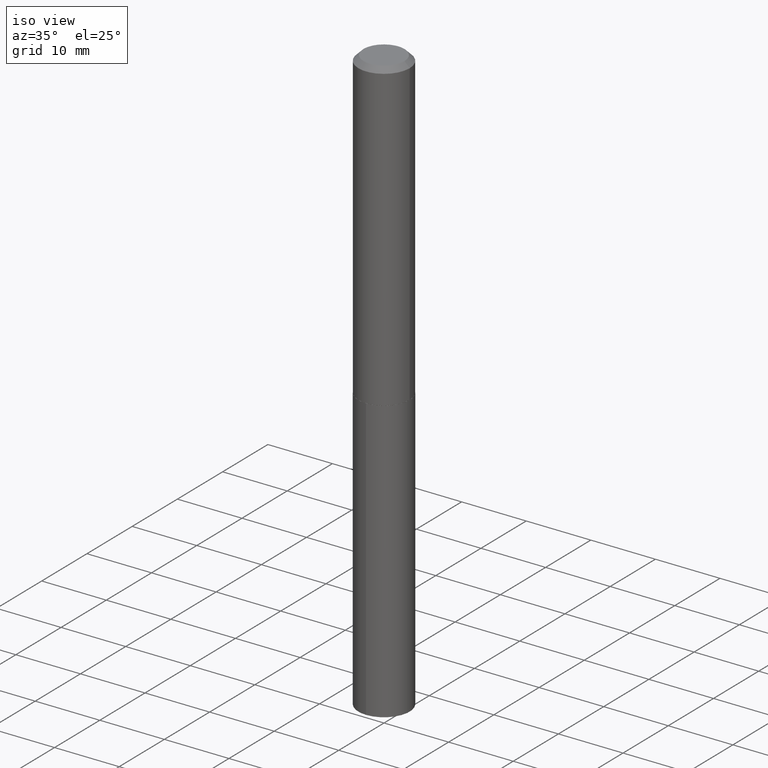
[diagram: clean part render]
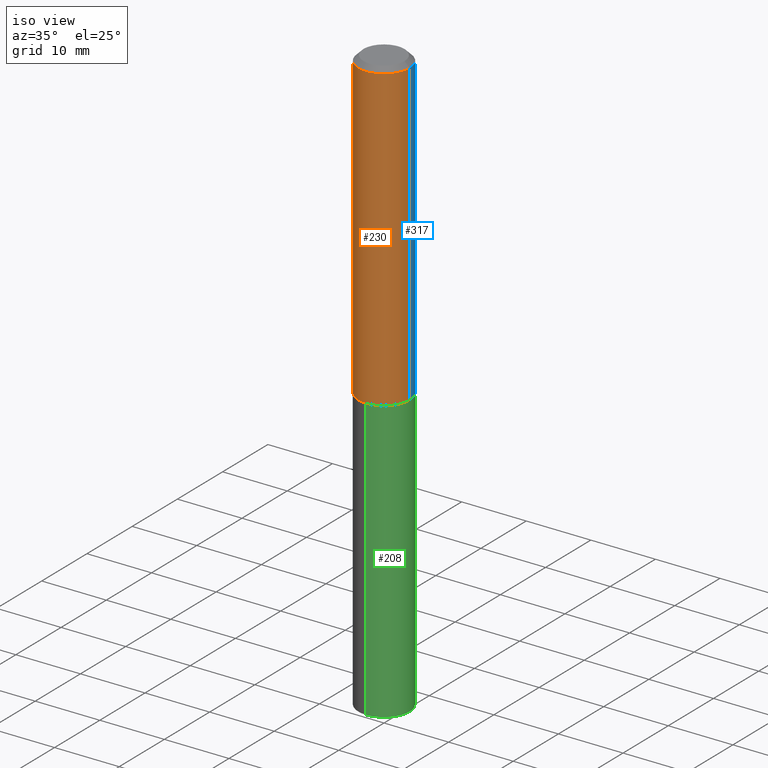
[diagram: same view with three faces highlighted in distinct colors, each labeled with its STEP entity id]
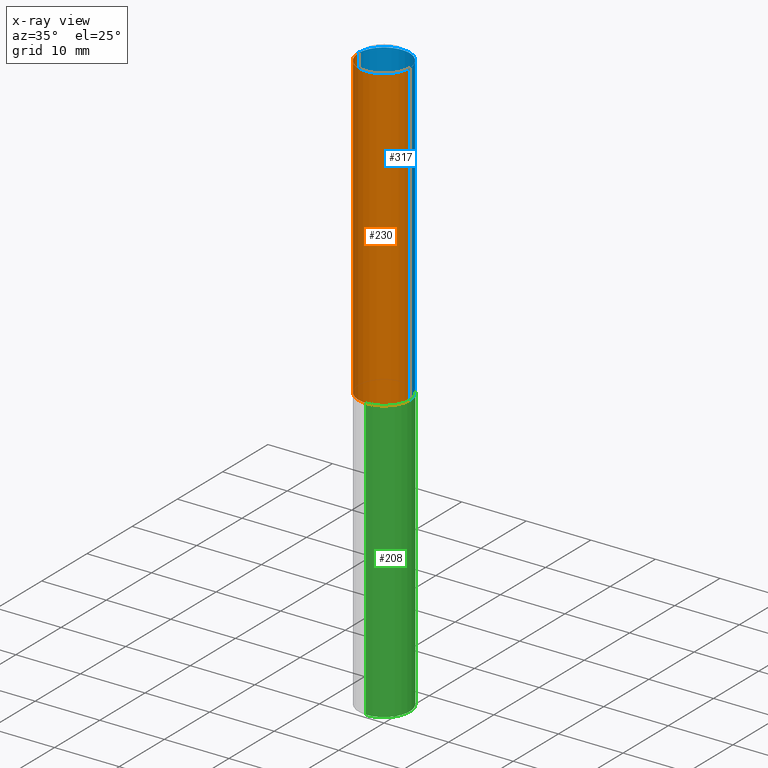
[diagram: x-ray of the same camera — body ghosted, the three highlighted faces saturated]
A machine part, iso view with three faces highlighted in distinct colors.
The next image is the same camera in x-ray (body ghosted, the three faces saturated) — at least one of them is partly hidden behind the body in this view.
Their STEP definitions:

[orange] entity #230 — the highlighted cylindrical surface (edge-blend (fillet) strip) has radius 3.9688 mm, axis along (-0, 0, 1).
#1 = FACE_OUTER_BOUND ( 'NONE', #309, .T. ) ;
#5 = DIRECTION ( 'NONE',  ( -2.445468806185136877E-29, 3.491481338843145188E-15, 1.000000000000000000 ) ) ;
#43 = EDGE_CURVE ( 'NONE', #221, #296, #367, .T. ) ;
#51 = LINE ( 'NONE', #178, #228 ) ;
#57 = CARTESIAN_POINT ( 'NONE',  ( -0.1562500000000000833, 1.110223024625157132E-15, -7.685836078523293962E-30 ) ) ;
#58 = EDGE_CURVE ( 'NONE', #361, #221, #332, .T. ) ;
#86 = AXIS2_PLACEMENT_3D ( 'NONE', #299, #253, #176 ) ;
#93 = DIRECTION ( 'NONE',  ( -2.445468806185136597E-29, 3.491481338843145583E-15, 1.000000000000000000 ) ) ;
#94 = ORIENTED_EDGE ( 'NONE', *, *, #217, .T. ) ;
#97 = CARTESIAN_POINT ( 'NONE',  ( -0.1562500000000001665, -5.380091636150366596E-15, -1.858900000000000219 ) ) ;
#130 = CARTESIAN_POINT ( 'NONE',  ( -0.1562500000000000000, -2.189488701682029578E-15, -0.03125000000000022898 ) ) ;
#141 = EDGE_CURVE ( 'NONE', #361, #358, #359, .T. ) ;
#159 = CARTESIAN_POINT ( 'NONE',  ( 7.642090019328607041E-31, -1.091087918388490883E-16, -0.03125000000000022898 ) ) ;
#176 = DIRECTION ( 'NONE',  ( 1.000000000000000000, -6.982962677686268288E-15, 0.000000000000000000 ) ) ;
#178 = CARTESIAN_POINT ( 'NONE',  ( 0.1562500000000000833, -1.091087918388479765E-15, 7.619026212181153180E-30 ) ) ;
#182 = CARTESIAN_POINT ( 'NONE',  ( 0.1562500000000000000, -1.200196710227328471E-15, -0.03125000000000022898 ) ) ;
#185 = DIRECTION ( 'NONE',  ( -2.445468806185136877E-29, 3.491481338843145188E-15, 1.000000000000000000 ) ) ;
#210 = CARTESIAN_POINT ( 'NONE',  ( 0.000000000000000000, 0.000000000000000000, 0.000000000000000000 ) ) ;
#211 = DIRECTION ( 'NONE',  ( -2.445468806185136597E-29, 3.491481338843145583E-15, 1.000000000000000000 ) ) ;
#215 = DIRECTION ( 'NONE',  ( 1.000000000000000000, -6.982962677686268288E-15, 0.000000000000000000 ) ) ;
#217 = EDGE_CURVE ( 'NONE', #358, #296, #51, .T. ) ;
#221 = VERTEX_POINT ( 'NONE', #130 ) ;
#228 = VECTOR ( 'NONE', #185, 39.37007874015748143 ) ;
#230 = ADVANCED_FACE ( 'NONE', ( #1 ), #295, .T. ) ;
#232 = AXIS2_PLACEMENT_3D ( 'NONE', #210, #211, #360 ) ;
#244 = AXIS2_PLACEMENT_3D ( 'NONE', #159, #93, #215 ) ;
#253 = DIRECTION ( 'NONE',  ( -2.445468806185136597E-29, 3.491481338843145583E-15, 1.000000000000000000 ) ) ;
#261 = ORIENTED_EDGE ( 'NONE', *, *, #141, .T. ) ;
#291 = VECTOR ( 'NONE', #5, 39.37007874015748143 ) ;
#295 = CYLINDRICAL_SURFACE ( 'NONE', #232, 0.1562500000000000833 ) ;
#296 = VERTEX_POINT ( 'NONE', #182 ) ;
#299 = CARTESIAN_POINT ( 'NONE',  ( 4.545881963817551095E-29, -6.490314660775524714E-15, -1.858900000000000219 ) ) ;
#309 = EDGE_LOOP ( 'NONE', ( #375, #261, #94, #329 ) ) ;
#311 = CARTESIAN_POINT ( 'NONE',  ( 0.1562500000000001665, -7.581402579164005466E-15, -1.858900000000000219 ) ) ;
#329 = ORIENTED_EDGE ( 'NONE', *, *, #43, .F. ) ;
#332 = LINE ( 'NONE', #57, #291 ) ;
#358 = VERTEX_POINT ( 'NONE', #311 ) ;
#359 = CIRCLE ( 'NONE', #86, 0.1562500000000001665 ) ;
#360 = DIRECTION ( 'NONE',  ( 1.000000000000000000, -6.982962677686266711E-15, 4.876176775795935232E-29 ) ) ;
#361 = VERTEX_POINT ( 'NONE', #97 ) ;
#367 = CIRCLE ( 'NONE', #244, 0.1562500000000000000 ) ;
#375 = ORIENTED_EDGE ( 'NONE', *, *, #58, .F. ) ;

[blue] entity #317 — the highlighted cylindrical surface (edge-blend (fillet) strip) has radius 3.9688 mm, axis along (-0, 0, 1).
#2 = ORIENTED_EDGE ( 'NONE', *, *, #217, .F. ) ;
#5 = DIRECTION ( 'NONE',  ( -2.445468806185136877E-29, 3.491481338843145188E-15, 1.000000000000000000 ) ) ;
#18 = AXIS2_PLACEMENT_3D ( 'NONE', #388, #179, #333 ) ;
#51 = LINE ( 'NONE', #178, #228 ) ;
#57 = CARTESIAN_POINT ( 'NONE',  ( -0.1562500000000000833, 1.110223024625157132E-15, -7.685836078523293962E-30 ) ) ;
#58 = EDGE_CURVE ( 'NONE', #361, #221, #332, .T. ) ;
#65 = DIRECTION ( 'NONE',  ( 1.000000000000000000, -6.982962677686268288E-15, 0.000000000000000000 ) ) ;
#89 = CYLINDRICAL_SURFACE ( 'NONE', #110, 0.1562500000000000833 ) ;
#97 = CARTESIAN_POINT ( 'NONE',  ( -0.1562500000000001665, -5.380091636150366596E-15, -1.858900000000000219 ) ) ;
#105 = AXIS2_PLACEMENT_3D ( 'NONE', #116, #196, #65 ) ;
#107 = ORIENTED_EDGE ( 'NONE', *, *, #58, .T. ) ;
#110 = AXIS2_PLACEMENT_3D ( 'NONE', #119, #303, #234 ) ;
#115 = EDGE_LOOP ( 'NONE', ( #219, #107, #255, #2 ) ) ;
#116 = CARTESIAN_POINT ( 'NONE',  ( 7.642090019328607041E-31, -1.091087918388490883E-16, -0.03125000000000022898 ) ) ;
#119 = CARTESIAN_POINT ( 'NONE',  ( 0.000000000000000000, 0.000000000000000000, 0.000000000000000000 ) ) ;
#130 = CARTESIAN_POINT ( 'NONE',  ( -0.1562500000000000000, -2.189488701682029578E-15, -0.03125000000000022898 ) ) ;
#178 = CARTESIAN_POINT ( 'NONE',  ( 0.1562500000000000833, -1.091087918388479765E-15, 7.619026212181153180E-30 ) ) ;
#179 = DIRECTION ( 'NONE',  ( -2.445468806185136597E-29, 3.491481338843145583E-15, 1.000000000000000000 ) ) ;
#182 = CARTESIAN_POINT ( 'NONE',  ( 0.1562500000000000000, -1.200196710227328471E-15, -0.03125000000000022898 ) ) ;
#185 = DIRECTION ( 'NONE',  ( -2.445468806185136877E-29, 3.491481338843145188E-15, 1.000000000000000000 ) ) ;
#191 = CIRCLE ( 'NONE', #105, 0.1562500000000000000 ) ;
#196 = DIRECTION ( 'NONE',  ( -2.445468806185136597E-29, 3.491481338843145583E-15, 1.000000000000000000 ) ) ;
#217 = EDGE_CURVE ( 'NONE', #358, #296, #51, .T. ) ;
#219 = ORIENTED_EDGE ( 'NONE', *, *, #267, .T. ) ;
#221 = VERTEX_POINT ( 'NONE', #130 ) ;
#228 = VECTOR ( 'NONE', #185, 39.37007874015748143 ) ;
#234 = DIRECTION ( 'NONE',  ( 1.000000000000000000, -6.982962677686266711E-15, 4.876176775795935232E-29 ) ) ;
#255 = ORIENTED_EDGE ( 'NONE', *, *, #356, .F. ) ;
#267 = EDGE_CURVE ( 'NONE', #358, #361, #312, .T. ) ;
#268 = FACE_OUTER_BOUND ( 'NONE', #115, .T. ) ;
#291 = VECTOR ( 'NONE', #5, 39.37007874015748143 ) ;
#296 = VERTEX_POINT ( 'NONE', #182 ) ;
#303 = DIRECTION ( 'NONE',  ( -2.445468806185136597E-29, 3.491481338843145583E-15, 1.000000000000000000 ) ) ;
#311 = CARTESIAN_POINT ( 'NONE',  ( 0.1562500000000001665, -7.581402579164005466E-15, -1.858900000000000219 ) ) ;
#312 = CIRCLE ( 'NONE', #18, 0.1562500000000001665 ) ;
#317 = ADVANCED_FACE ( 'NONE', ( #268 ), #89, .T. ) ;
#332 = LINE ( 'NONE', #57, #291 ) ;
#333 = DIRECTION ( 'NONE',  ( 1.000000000000000000, -6.982962677686268288E-15, 0.000000000000000000 ) ) ;
#356 = EDGE_CURVE ( 'NONE', #296, #221, #191, .T. ) ;
#358 = VERTEX_POINT ( 'NONE', #311 ) ;
#361 = VERTEX_POINT ( 'NONE', #97 ) ;
#388 = CARTESIAN_POINT ( 'NONE',  ( 4.545881963817551095E-29, -6.490314660775524714E-15, -1.858900000000000219 ) ) ;

[green] entity #208 — the highlighted cylindrical surface (edge-blend (fillet) strip) has radius 3.9688 mm, axis along (-0, 0, 1).
#4 = DIRECTION ( 'NONE',  ( -2.438279987139125498E-29, 3.501776136879202935E-15, 1.000000000000000000 ) ) ;
#13 = EDGE_LOOP ( 'NONE', ( #212, #224, #315, #236 ) ) ;
#20 = DIRECTION ( 'NONE',  ( -2.438279987139125779E-29, 3.501776136879202935E-15, 1.000000000000000000 ) ) ;
#26 = VERTEX_POINT ( 'NONE', #180 ) ;
#35 = CARTESIAN_POINT ( 'NONE',  ( 1.110223024625243907E-15, 0.1562499999999875100, -3.575734564237659452 ) ) ;
#40 = CIRCLE ( 'NONE', #263, 0.1562500000000000278 ) ;
#42 = CARTESIAN_POINT ( 'NONE',  ( 8.732008917436479290E-29, -1.250227982139334463E-14, -3.575734564237659008 ) ) ;
#52 = CARTESIAN_POINT ( 'NONE',  ( -1.091087918388433617E-15, -0.1562500000000064948, -1.859399999999999498 ) ) ;
#56 = CARTESIAN_POINT ( 'NONE',  ( 1.110223024625201703E-15, 0.1562499999999935052, -1.859400000000000608 ) ) ;
#59 = DIRECTION ( 'NONE',  ( -2.438279987139125779E-29, 3.501776136879202935E-15, 1.000000000000000000 ) ) ;
#64 = VECTOR ( 'NONE', #4, 39.37007874015748143 ) ;
#70 = DIRECTION ( 'NONE',  ( -6.982962677686266711E-15, -1.000000000000000000, 3.496765431890256131E-15 ) ) ;
#74 = CARTESIAN_POINT ( 'NONE',  ( 4.547104698220642775E-29, -6.492060401444945429E-15, -1.859400000000000164 ) ) ;
#85 = DIRECTION ( 'NONE',  ( -2.438279987139125498E-29, 3.501776136879202935E-15, 1.000000000000000000 ) ) ;
#103 = DIRECTION ( 'NONE',  ( -2.438279987139125779E-29, 3.501776136879202935E-15, 1.000000000000000000 ) ) ;
#104 = VECTOR ( 'NONE', #85, 39.37007874015748143 ) ;
#128 = CIRCLE ( 'NONE', #279, 0.1562500000000000000 ) ;
#144 = DIRECTION ( 'NONE',  ( -6.982962677686265133E-15, -1.000000000000000000, 3.496765431890256920E-15 ) ) ;
#152 = CARTESIAN_POINT ( 'NONE',  ( 4.547104698220642775E-29, -6.492060401444945429E-15, -1.859400000000000164 ) ) ;
#172 = EDGE_CURVE ( 'NONE', #26, #323, #128, .T. ) ;
#180 = CARTESIAN_POINT ( 'NONE',  ( -1.091087918388433617E-15, -0.1562500000000064948, -1.859399999999999498 ) ) ;
#208 = ADVANCED_FACE ( 'NONE', ( #293 ), #364, .T. ) ;
#212 = ORIENTED_EDGE ( 'NONE', *, *, #371, .T. ) ;
#224 = ORIENTED_EDGE ( 'NONE', *, *, #283, .T. ) ;
#236 = ORIENTED_EDGE ( 'NONE', *, *, #265, .F. ) ;
#247 = CARTESIAN_POINT ( 'NONE',  ( -1.091087918388391610E-15, -0.1562500000000125178, -3.575734564237658564 ) ) ;
#263 = AXIS2_PLACEMENT_3D ( 'NONE', #42, #103, #70 ) ;
#265 = EDGE_CURVE ( 'NONE', #345, #26, #300, .T. ) ;
#272 = LINE ( 'NONE', #56, #64 ) ;
#279 = AXIS2_PLACEMENT_3D ( 'NONE', #74, #20, #144 ) ;
#283 = EDGE_CURVE ( 'NONE', #376, #323, #272, .T. ) ;
#293 = FACE_OUTER_BOUND ( 'NONE', #13, .T. ) ;
#300 = LINE ( 'NONE', #52, #104 ) ;
#315 = ORIENTED_EDGE ( 'NONE', *, *, #172, .F. ) ;
#323 = VERTEX_POINT ( 'NONE', #336 ) ;
#325 = AXIS2_PLACEMENT_3D ( 'NONE', #152, #59, #331 ) ;
#331 = DIRECTION ( 'NONE',  ( -6.982962677686265133E-15, -1.000000000000000000, 3.496765431890256920E-15 ) ) ;
#336 = CARTESIAN_POINT ( 'NONE',  ( 1.110223024625243907E-15, 0.1562499999999935052, -1.859400000000000608 ) ) ;
#345 = VERTEX_POINT ( 'NONE', #247 ) ;
#364 = CYLINDRICAL_SURFACE ( 'NONE', #325, 0.1562500000000000000 ) ;
#371 = EDGE_CURVE ( 'NONE', #345, #376, #40, .T. ) ;
#376 = VERTEX_POINT ( 'NONE', #35 ) ;